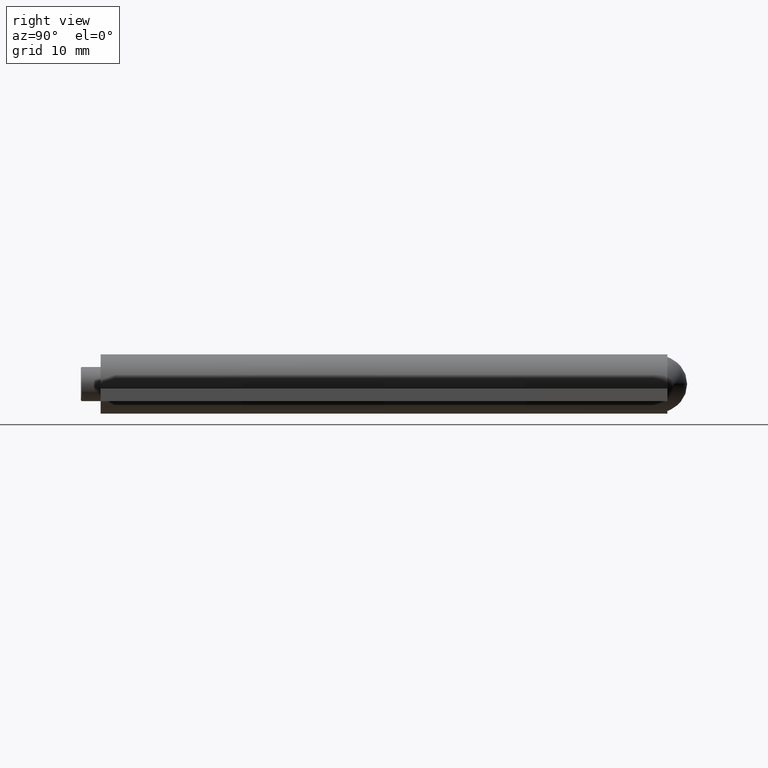
[diagram: clean part render]
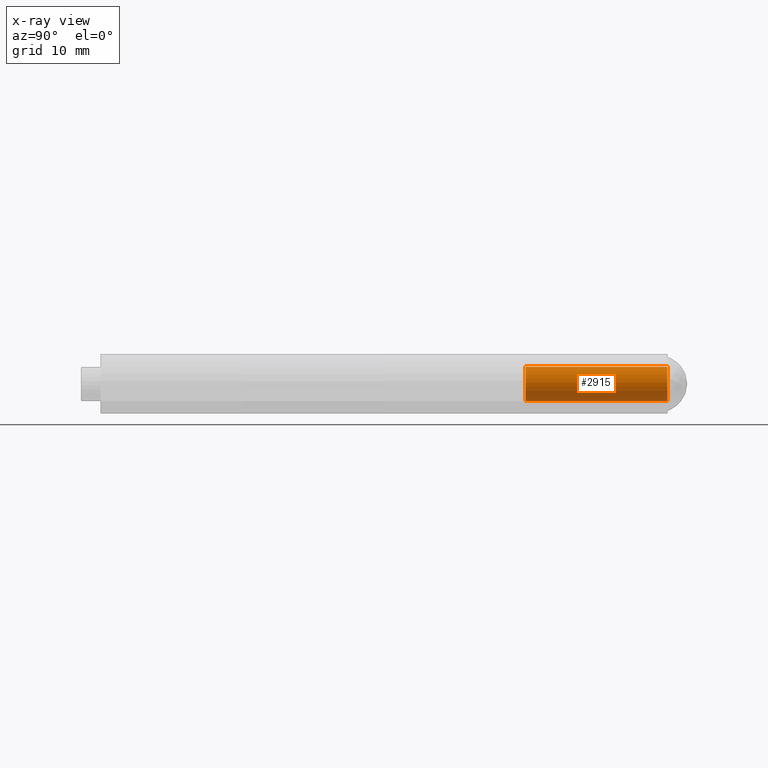
[diagram: x-ray — body ghosted, one internal face saturated and labeled with its STEP entity id]
A machine part, right view, then the same camera in x-ray: the body is ghosted and one INTERNAL B-rep face — a face not visible from any outside direction — is saturated and labeled: STEP entity #2915.
In plain terms, the highlighted cylindrical surface (edge-blend (fillet) strip) has radius 1.9 mm, axis along (-0, -1, -0).
Its self-contained STEP definition (entity closure, byte-faithful):
#97 = DIRECTION ( 'NONE',  ( 0.000000000000000000, 0.000000000000000000, -1.000000000000000000 ) ) ;
#678 = EDGE_CURVE ( 'NONE', #4038, #5392, #1234, .T. ) ;
#848 = VECTOR ( 'NONE', #7358, 1000.000000000000000 ) ;
#862 = CARTESIAN_POINT ( 'NONE',  ( -1.885990592297123181, 15.75000000000000000, -0.2303030303030307313 ) ) ;
#976 = CARTESIAN_POINT ( 'NONE',  ( -1.885990592297123181, 31.50000000000000000, -0.2303030303030307591 ) ) ;
#987 = DIRECTION ( 'NONE',  ( 0.000000000000000000, 0.000000000000000000, 1.000000000000000000 ) ) ;
#1068 = DIRECTION ( 'NONE',  ( -0.000000000000000000, -1.000000000000000000, -0.000000000000000000 ) ) ;
#1234 = LINE ( 'NONE', #976, #4512 ) ;
#1605 = DIRECTION ( 'NONE',  ( -0.000000000000000000, -1.000000000000000000, -0.000000000000000000 ) ) ;
#1869 = DIRECTION ( 'NONE',  ( -0.000000000000000000, -1.000000000000000000, -0.000000000000000000 ) ) ;
#2561 = CARTESIAN_POINT ( 'NONE',  ( -1.352897064182764897, 31.50000000000000000, -1.334042553191489677 ) ) ;
#2582 = EDGE_LOOP ( 'NONE', ( #8960, #3599, #9133, #4747 ) ) ;
#2783 = CIRCLE ( 'NONE', #3592, 1.900000000000003242 ) ;
#2915 = ADVANCED_FACE ( 'NONE', ( #9343 ), #5483, .F. ) ;
#3592 = AXIS2_PLACEMENT_3D ( 'NONE', #5540, #1068, #987 ) ;
#3599 = ORIENTED_EDGE ( 'NONE', *, *, #9583, .T. ) ;
#3790 = AXIS2_PLACEMENT_3D ( 'NONE', #10507, #1605, #97 ) ;
#4038 = VERTEX_POINT ( 'NONE', #10574 ) ;
#4196 = VERTEX_POINT ( 'NONE', #6638 ) ;
#4512 = VECTOR ( 'NONE', #1869, 1000.000000000000000 ) ;
#4747 = ORIENTED_EDGE ( 'NONE', *, *, #8891, .F. ) ;
#5392 = VERTEX_POINT ( 'NONE', #862 ) ;
#5483 = CYLINDRICAL_SURFACE ( 'NONE', #3790, 1.900000000000003242 ) ;
#5540 = CARTESIAN_POINT ( 'NONE',  ( 0.000000000000000000, 31.50000000000000000, 0.000000000000000000 ) ) ;
#6638 = CARTESIAN_POINT ( 'NONE',  ( -1.352897064182764675, 15.75000000000000000, -1.334042553191489677 ) ) ;
#6921 = VERTEX_POINT ( 'NONE', #2561 ) ;
#7313 = CARTESIAN_POINT ( 'NONE',  ( 0.000000000000000000, 15.75000000000000000, 0.000000000000000000 ) ) ;
#7358 = DIRECTION ( 'NONE',  ( -0.000000000000000000, -1.000000000000000000, -0.000000000000000000 ) ) ;
#7885 = LINE ( 'NONE', #10060, #848 ) ;
#8891 = EDGE_CURVE ( 'NONE', #6921, #4038, #2783, .T. ) ;
#8960 = ORIENTED_EDGE ( 'NONE', *, *, #9533, .T. ) ;
#9133 = ORIENTED_EDGE ( 'NONE', *, *, #678, .F. ) ;
#9160 = DIRECTION ( 'NONE',  ( -1.000000000000000000, 0.000000000000000000, 0.000000000000000000 ) ) ;
#9343 = FACE_OUTER_BOUND ( 'NONE', #2582, .T. ) ;
#9533 = EDGE_CURVE ( 'NONE', #6921, #4196, #7885, .T. ) ;
#9583 = EDGE_CURVE ( 'NONE', #4196, #5392, #10751, .T. ) ;
#10060 = CARTESIAN_POINT ( 'NONE',  ( -1.352897064182764897, 31.50000000000000000, -1.334042553191489677 ) ) ;
#10083 = AXIS2_PLACEMENT_3D ( 'NONE', #7313, #10914, #9160 ) ;
#10507 = CARTESIAN_POINT ( 'NONE',  ( 0.000000000000000000, 31.50000000000000000, 0.000000000000000000 ) ) ;
#10574 = CARTESIAN_POINT ( 'NONE',  ( -1.885990592297123181, 31.50000000000000000, -0.2303030303030307591 ) ) ;
#10751 = CIRCLE ( 'NONE', #10083, 1.900000000000003242 ) ;
#10914 = DIRECTION ( 'NONE',  ( 2.312964634635742957E-16, -1.000000000000000000, -0.000000000000000000 ) ) ;